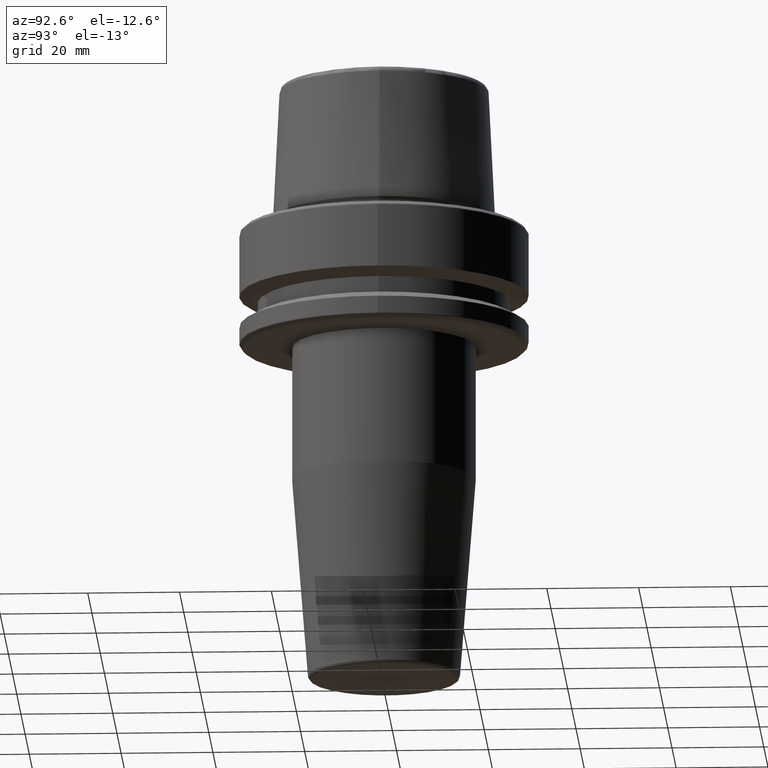
[diagram: clean part render]
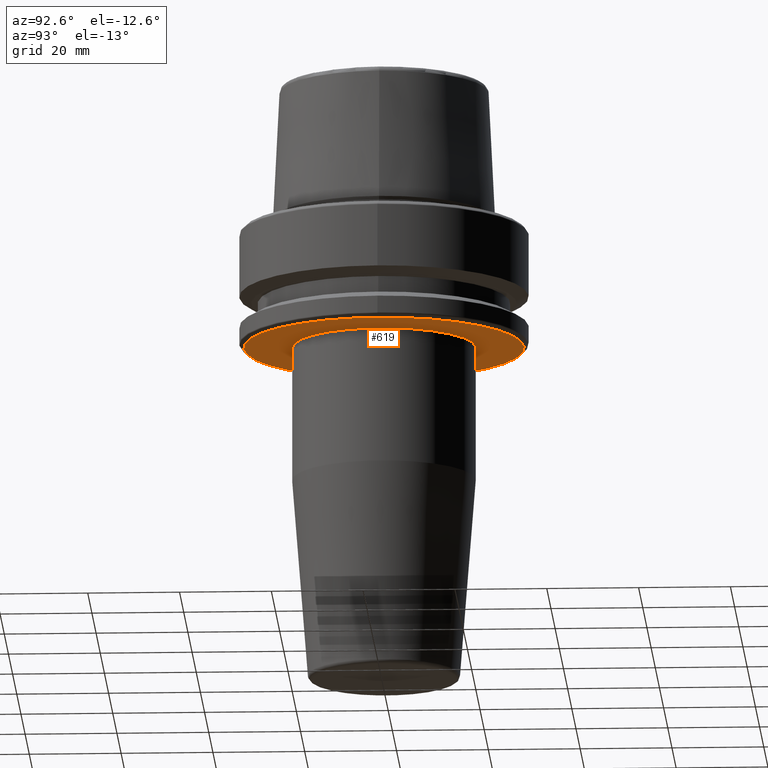
[diagram: same view with one face highlighted and labeled with its STEP entity id]
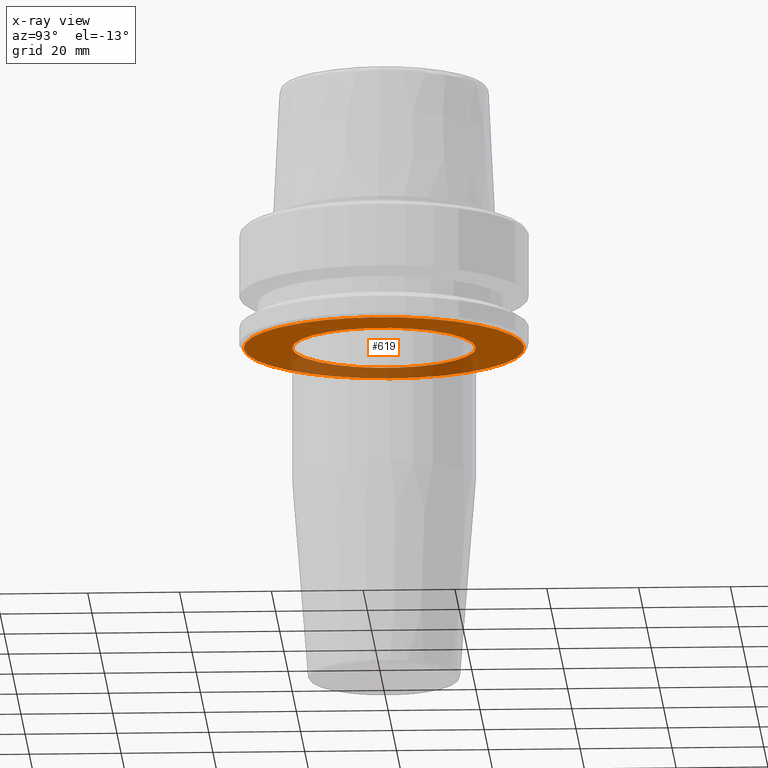
[diagram: x-ray of the same camera — body ghosted, the highlighted face saturated]
A machine part, auxiliary view. The second image highlights one B-rep face of the part: STEP entity #619.
The next image is the same camera in x-ray: the body ghosted, the highlighted face saturated — about 29% of this face is hidden behind the body in this view.
In plain terms, the highlighted planar face has unit normal (0, -0, 1).
Its self-contained STEP definition (entity closure, byte-faithful):
#41 = CARTESIAN_POINT ( 'NONE',  ( 0.0000000000000000000, 19.99999999999998900, -26.00000000000001100 ) ) ;
#237 = CARTESIAN_POINT ( 'NONE',  ( 0.0000000000000000000, 30.53431457505076800, -26.00000000000001100 ) ) ;
#251 = EDGE_CURVE ( 'NONE', #1079, #1013, #1199, .T. ) ;
#276 = CIRCLE ( 'NONE', #535, 30.53431457505076800 ) ;
#278 = VERTEX_POINT ( 'NONE', #629 ) ;
#297 = DIRECTION ( 'NONE',  ( 0.0000000000000000000, 0.0000000000000000000, -1.000000000000000000 ) ) ;
#330 = FACE_BOUND ( 'NONE', #738, .T. ) ;
#331 = PLANE ( 'NONE',  #499 ) ;
#347 = CARTESIAN_POINT ( 'NONE',  ( 0.0000000000000000000, 0.0000000000000000000, -26.00000000000001100 ) ) ;
#401 = VERTEX_POINT ( 'NONE', #411 ) ;
#411 = CARTESIAN_POINT ( 'NONE',  ( 30.53431457505076800, 0.0000000000000000000, -26.00000000000001100 ) ) ;
#430 = DIRECTION ( 'NONE',  ( 1.000000000000000000, 0.0000000000000000000, 0.0000000000000000000 ) ) ;
#438 = DIRECTION ( 'NONE',  ( 0.0000000000000000000, -0.0000000000000000000, 1.000000000000000000 ) ) ;
#442 = DIRECTION ( 'NONE',  ( 1.000000000000000000, 0.0000000000000000000, 0.0000000000000000000 ) ) ;
#459 = CARTESIAN_POINT ( 'NONE',  ( 0.0000000000000000000, 0.0000000000000000000, -26.00000000000001100 ) ) ;
#475 = EDGE_LOOP ( 'NONE', ( #1221, #647 ) ) ;
#499 = AXIS2_PLACEMENT_3D ( 'NONE', #237, #438, #1135 ) ;
#535 = AXIS2_PLACEMENT_3D ( 'NONE', #347, #1040, #442 ) ;
#567 = DIRECTION ( 'NONE',  ( 1.000000000000000000, 0.0000000000000000000, 0.0000000000000000000 ) ) ;
#570 = FACE_OUTER_BOUND ( 'NONE', #475, .T. ) ;
#589 = ORIENTED_EDGE ( 'NONE', *, *, #251, .F. ) ;
#619 = ADVANCED_FACE ( 'NONE', ( #570, #330 ), #331, .F. ) ;
#629 = CARTESIAN_POINT ( 'NONE',  ( -30.53431457505076800, 3.756694181974139400E-015, -26.00000000000001100 ) ) ;
#647 = ORIENTED_EDGE ( 'NONE', *, *, #1206, .F. ) ;
#738 = EDGE_LOOP ( 'NONE', ( #1211, #589 ) ) ;
#742 = EDGE_CURVE ( 'NONE', #1013, #1079, #1185, .T. ) ;
#772 = CIRCLE ( 'NONE', #789, 30.53431457505076800 ) ;
#789 = AXIS2_PLACEMENT_3D ( 'NONE', #459, #1155, #567 ) ;
#884 = AXIS2_PLACEMENT_3D ( 'NONE', #1113, #1027, #430 ) ;
#892 = CARTESIAN_POINT ( 'NONE',  ( 0.0000000000000000000, 0.0000000000000000000, -26.00000000000001100 ) ) ;
#991 = DIRECTION ( 'NONE',  ( 1.000000000000000000, 0.0000000000000000000, 0.0000000000000000000 ) ) ;
#1013 = VERTEX_POINT ( 'NONE', #41 ) ;
#1027 = DIRECTION ( 'NONE',  ( 0.0000000000000000000, 0.0000000000000000000, -1.000000000000000000 ) ) ;
#1040 = DIRECTION ( 'NONE',  ( -0.0000000000000000000, -0.0000000000000000000, 1.000000000000000000 ) ) ;
#1079 = VERTEX_POINT ( 'NONE', #1118 ) ;
#1096 = AXIS2_PLACEMENT_3D ( 'NONE', #892, #297, #991 ) ;
#1113 = CARTESIAN_POINT ( 'NONE',  ( 0.0000000000000000000, 0.0000000000000000000, -26.00000000000001100 ) ) ;
#1118 = CARTESIAN_POINT ( 'NONE',  ( 2.449293598294705300E-015, -19.99999999999998900, -26.00000000000001100 ) ) ;
#1135 = DIRECTION ( 'NONE',  ( 1.000000000000000000, 0.0000000000000000000, 0.0000000000000000000 ) ) ;
#1155 = DIRECTION ( 'NONE',  ( -0.0000000000000000000, -0.0000000000000000000, 1.000000000000000000 ) ) ;
#1185 = CIRCLE ( 'NONE', #1096, 19.99999999999998900 ) ;
#1199 = CIRCLE ( 'NONE', #884, 19.99999999999998900 ) ;
#1206 = EDGE_CURVE ( 'NONE', #278, #401, #276, .T. ) ;
#1211 = ORIENTED_EDGE ( 'NONE', *, *, #742, .F. ) ;
#1221 = ORIENTED_EDGE ( 'NONE', *, *, #1240, .F. ) ;
#1240 = EDGE_CURVE ( 'NONE', #401, #278, #772, .T. ) ;